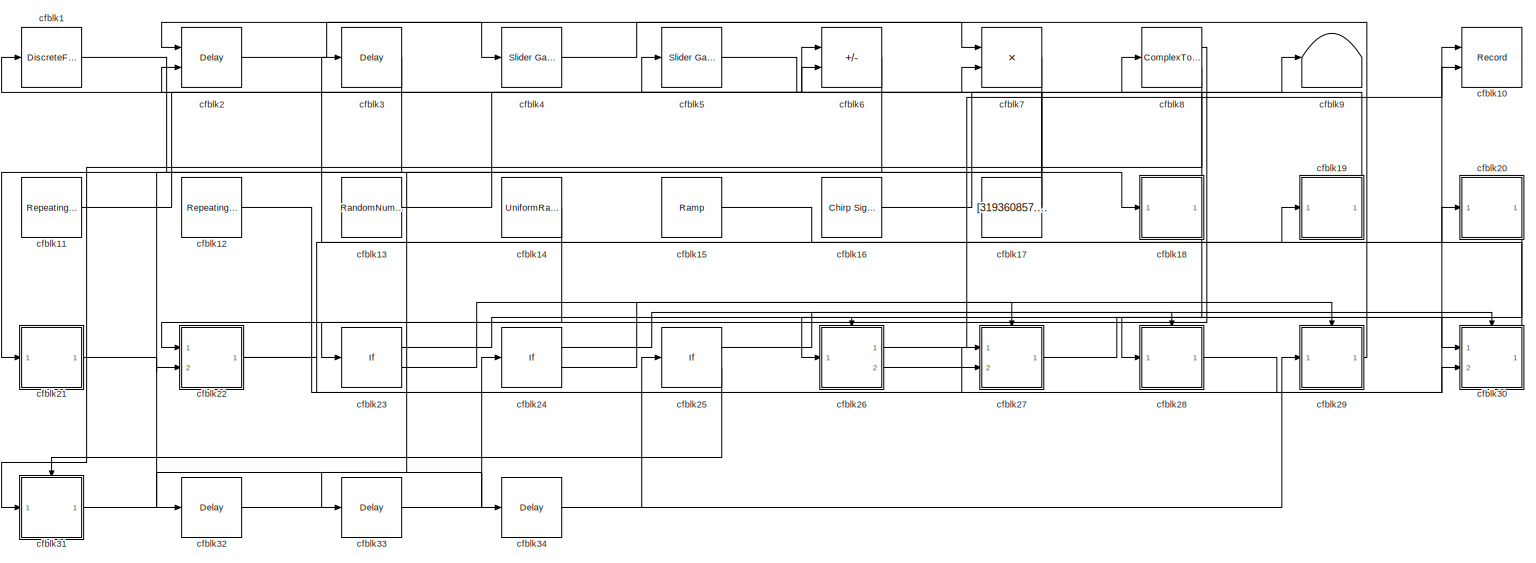
[diagram: root canvas - part 1/1, most of the canvas]
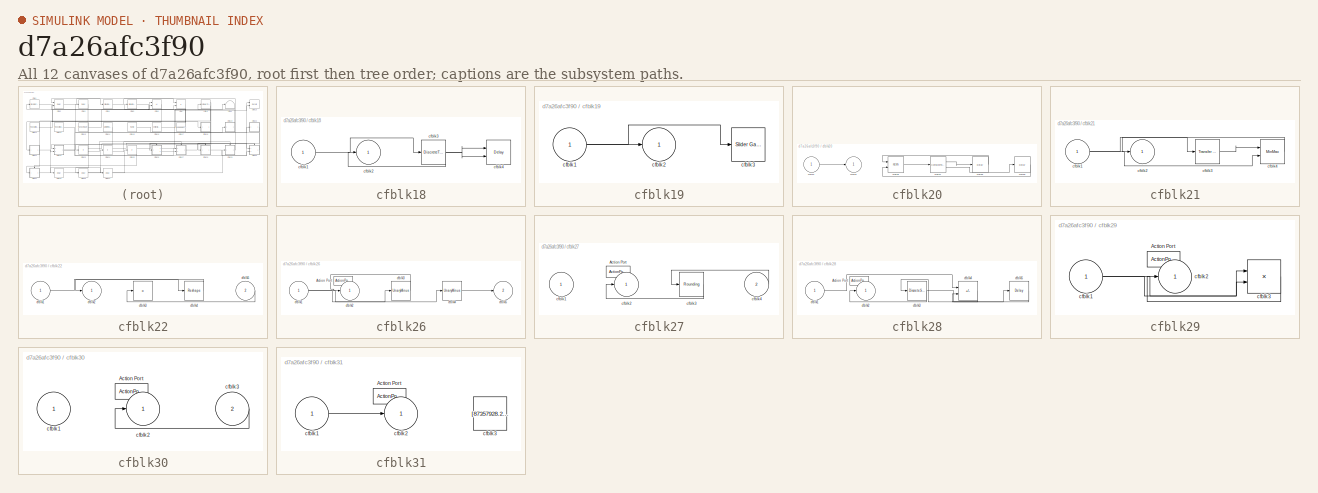
[diagram: thumbnail index - all 12 canvases of the model, root first then tree order]
MODEL slx_d7a26afc3f90
KIND model
CONFIG AbsTol = auto
CONFIG EnableMultiTasking = off
CONFIG FixedStep = auto
CONFIG MaxStep = auto
CONFIG MinStep = auto
CONFIG RelTol = 1e-3
CONFIG SampleTimeConstraint = Unconstrained
CONFIG SolverName = VariableStepAuto
CONFIG StartTime = 0.0
CONFIG StopTime = 10.0
BLOCK [DiscreteFilter] cfblk1
  InputPortMap = u0
  Ports = [1, 1]
  SampleTime = 1
BLOCK [Record] cfblk10
  CompatibilityTag = XY
  FileSettingsInternal = {"entries":[{"content":{"excelSettings":{"content":{},"type":"Streamout.ExcelSettings"}},"type":"Streamout.FileSettingStorage","uuid":"e7662b0d-9788-4241-b231-2d1bc495edf1"}],"packageUris":["http://schema.mathworks.com/mf0/streamout_blocks/R2020a"],"version":"1.0"}
  Layout = [1 1]
  Ports = [2]
  SignalsInternal = {"entries":[{"content":{"signals":[{"content":{"blockPath":["sampleModel112/cfblk10"],"channel":[],"dimensions":[1],"domain":"sampleModel112/cfblk10","lineColor":"#a2142f","plots":[1],"port":1,"sid":[""],"signalID":3893,"signalName":"cfblk12"},"type":"RecordBlkView.Signal","uuid":"768b1969-7b99-49bf-8f29-881fa0714196"},{"content":{"blockPath":["sampleModel112/cfblk10"],"channel":[],"dimensions":[1...<+385ch>
  VisualizationBindings = {"xyplotplugin":{"info":[{"series":[{"bindingParametersList":[{"parameter":"X-Axis","signalID":3893,"signalName":"cfblk12"},{"parameter":"Y-Axis","signalID":3897,"signalName":"cfblk26:1"}],"seriesID":16983}],"subplotID":1}]}}
BLOCK [Reference] cfblk11  REF=simulink/Sources/Repeating
Sequence
  Ports = [0, 1]
  SourceBlock = simulink/Sources/Repeating\nSequence
  SourceProductBaseCode = SL
  SourceType = Repeating table
BLOCK [Reference] cfblk12  REF=simulink/Sources/Repeating
Sequence
  Ports = [0, 1]
  SourceBlock = simulink/Sources/Repeating\nSequence
  SourceProductBaseCode = SL
  SourceType = Repeating table
BLOCK [RandomNumber] cfblk13
  Mean = [-82983.500332]
  SampleTime = 0.1
  Seed = [308454848.000000]
  Variance = [79082.987878]
BLOCK [UniformRandomNumber] cfblk14
  Maximum = [7952096108.975738]
  Minimum = [-3368545703.776334]
  SampleTime = 0.1
  Seed = [61725340.000000]
BLOCK [Reference] cfblk15  REF=simulink/Sources/Ramp
  Ports = [0, 1]
  SourceBlock = simulink/Sources/Ramp
  SourceProductBaseCode = SL
  SourceType = Ramp
BLOCK [Reference] cfblk16  REF=simulink/Sources/Chirp Signal
  Ports = [0, 1]
  SourceBlock = simulink/Sources/Chirp Signal
  SourceProductBaseCode = SL
  SourceType = chirp
BLOCK [Constant] cfblk17
  SampleTime = 1
  Value = [319360857.779685]
BLOCK [SubSystem] cfblk18
  Ports = [1, 1]
  RequestExecContextInheritance = off
BLOCK [Inport] cfblk18/cfblk1
BLOCK [Outport] cfblk18/cfblk2
BLOCK [DiscreteTransferFcn] cfblk18/cfblk3
  InputPortMap = u0
  Ports = [1, 1]
  SampleTime = 1
BLOCK [Delay] cfblk18/cfblk4
  DelayLengthSource = Input port
  InputPortMap = u0,p1
  Ports = [2, 1]
  SampleTime = 1
BLOCK [SubSystem] cfblk19
  Ports = [1, 1]
  RequestExecContextInheritance = off
BLOCK [Inport] cfblk19/cfblk1
BLOCK [Outport] cfblk19/cfblk2
BLOCK [Reference] cfblk19/cfblk3  REF=simulink/Math
Operations/Slider
Gain
  Ports = [1, 1]
  SourceBlock = simulink/Math\nOperations/Slider\nGain
  SourceProductBaseCode = SL
  SourceType = Slider Gain
BLOCK [Delay] cfblk2
  InputPortMap = u0,e6
  Ports = [2, 1]
  SampleTime = 1
  ShowEnablePort = on
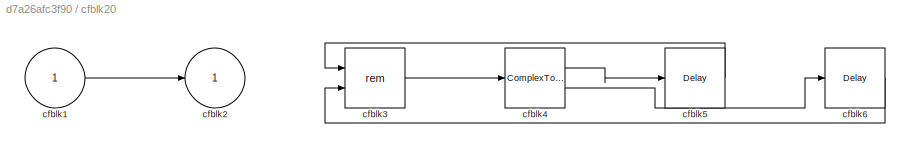
BLOCK [SubSystem] cfblk20
  Ports = [1, 1]
  RequestExecContextInheritance = off
BLOCK [Inport] cfblk20/cfblk1
BLOCK [Outport] cfblk20/cfblk2
BLOCK [Math] cfblk20/cfblk3
  Operator = rem
  Ports = [2, 1]
BLOCK [ComplexToMagnitudeAngle] cfblk20/cfblk4
  Ports = [1, 2]
BLOCK [Delay] cfblk20/cfblk5
  InputPortMap = u0
  Ports = [1, 1]
  SampleTime = 1
BLOCK [Delay] cfblk20/cfblk6
  InputPortMap = u0
  Ports = [1, 1]
  SampleTime = 1
BLOCK [SubSystem] cfblk21
  Ports = [1, 1]
  RequestExecContextInheritance = off
BLOCK [Inport] cfblk21/cfblk1
BLOCK [Outport] cfblk21/cfblk2
BLOCK [Reference] cfblk21/cfblk3  REF=simulink/Discrete/Transfer Fcn
First Order
  Ports = [1, 1]
  SourceBlock = simulink/Discrete/Transfer Fcn\nFirst Order
  SourceProductBaseCode = SL
  SourceType = First Order Transfer Fcn
BLOCK [MinMax] cfblk21/cfblk4
  Function = max
  Inputs = 2
  Ports = [2, 1]
BLOCK [SubSystem] cfblk22
  Ports = [2, 1]
  RequestExecContextInheritance = off
BLOCK [Inport] cfblk22/cfblk1
BLOCK [Outport] cfblk22/cfblk2
BLOCK [Product] cfblk22/cfblk3
  Inputs = *
  Ports = [1, 1]
BLOCK [Reshape] cfblk22/cfblk4
  Ports = [1, 1]
BLOCK [Inport] cfblk22/cfblk5
  Port = 2
BLOCK [If] cfblk23
  IfExpression = u1 >= 0
  Ports = [1, 2]
  SampleTime = 1
BLOCK [If] cfblk24
  IfExpression = u1 >= 0
  Ports = [1, 2]
  SampleTime = 1
BLOCK [If] cfblk25
  IfExpression = u1 >= 0
  Ports = [1, 2]
  SampleTime = 1
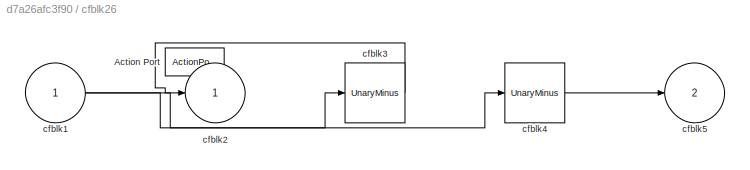
BLOCK [SubSystem] cfblk26
  Ports = [1, 2, 0, 0, 0, 0, 0, 1]
  RequestExecContextInheritance = off
  TreatAsAtomicUnit = on
BLOCK [ActionPort] cfblk26/Action Port
  ActionPortLabel = if(u1 >= 0)
BLOCK [Inport] cfblk26/cfblk1
BLOCK [Outport] cfblk26/cfblk2
BLOCK [UnaryMinus] cfblk26/cfblk3
BLOCK [UnaryMinus] cfblk26/cfblk4
BLOCK [Outport] cfblk26/cfblk5
  Port = 2
BLOCK [SubSystem] cfblk27
  Ports = [2, 1, 0, 0, 0, 0, 0, 1]
  RequestExecContextInheritance = off
  TreatAsAtomicUnit = on
BLOCK [ActionPort] cfblk27/Action Port
  ActionPortLabel = else
BLOCK [Inport] cfblk27/cfblk1
BLOCK [Outport] cfblk27/cfblk2
BLOCK [Rounding] cfblk27/cfblk3
BLOCK [Inport] cfblk27/cfblk4
  Port = 2
BLOCK [SubSystem] cfblk28
  Ports = [1, 1, 0, 0, 0, 0, 0, 1]
  RequestExecContextInheritance = off
  TreatAsAtomicUnit = on
BLOCK [ActionPort] cfblk28/Action Port
  ActionPortLabel = if(u1 >= 0)
BLOCK [Inport] cfblk28/cfblk1
BLOCK [Outport] cfblk28/cfblk2
BLOCK [DiscreteStateSpace] cfblk28/cfblk3
  SampleTime = -1
BLOCK [Sum] cfblk28/cfblk4
  IconShape = rectangular
  Inputs = -+
  Ports = [2, 1]
BLOCK [Delay] cfblk28/cfblk5
  InputPortMap = u0
  Ports = [1, 1]
BLOCK [SubSystem] cfblk29
  Ports = [1, 1, 0, 0, 0, 0, 0, 1]
  RequestExecContextInheritance = off
  TreatAsAtomicUnit = on
BLOCK [ActionPort] cfblk29/Action Port
  ActionPortLabel = else
BLOCK [Inport] cfblk29/cfblk1
BLOCK [Outport] cfblk29/cfblk2
BLOCK [Product] cfblk29/cfblk3
  Ports = [2, 1]
BLOCK [Delay] cfblk3
  InputPortMap = u0
  Ports = [1, 1]
  SampleTime = 1
BLOCK [SubSystem] cfblk30
  Ports = [2, 1, 0, 0, 0, 0, 0, 1]
  RequestExecContextInheritance = off
  TreatAsAtomicUnit = on
BLOCK [ActionPort] cfblk30/Action Port
  ActionPortLabel = if(u1 >= 0)
BLOCK [Inport] cfblk30/cfblk1
BLOCK [Outport] cfblk30/cfblk2
BLOCK [Inport] cfblk30/cfblk3
  Port = 2
BLOCK [SubSystem] cfblk31
  Ports = [1, 1, 0, 0, 0, 0, 0, 1]
  RequestExecContextInheritance = off
  TreatAsAtomicUnit = on
BLOCK [ActionPort] cfblk31/Action Port
  ActionPortLabel = else
BLOCK [Inport] cfblk31/cfblk1
BLOCK [Outport] cfblk31/cfblk2
BLOCK [Constant] cfblk31/cfblk3
  SampleTime = 1
  Value = [87357928.253987]
BLOCK [Delay] cfblk32
  InputPortMap = u0
  Ports = [1, 1]
  SampleTime = 1
BLOCK [Delay] cfblk33
  InputPortMap = u0
  Ports = [1, 1]
  SampleTime = 1
BLOCK [Delay] cfblk34
  InputPortMap = u0
  Ports = [1, 1]
  SampleTime = 1
BLOCK [Reference] cfblk4  REF=simulink/Math
Operations/Slider
Gain
  Ports = [1, 1]
  SourceBlock = simulink/Math\nOperations/Slider\nGain
  SourceProductBaseCode = SL
  SourceType = Slider Gain
BLOCK [Reference] cfblk5  REF=simulink/Math
Operations/Slider
Gain
  Ports = [1, 1]
  SourceBlock = simulink/Math\nOperations/Slider\nGain
  SourceProductBaseCode = SL
  SourceType = Slider Gain
BLOCK [Sum] cfblk6
  IconShape = rectangular
  Inputs = +-
  Ports = [2, 1]
BLOCK [Product] cfblk7
  Ports = [2, 1]
BLOCK [ComplexToRealImag] cfblk8
  Ports = [1, 2]
BLOCK [Terminator] cfblk9
LINE cfblk11:1 -> cfblk6:1
LINE cfblk12:1 -> cfblk10:1
LINE cfblk13:1 -> cfblk6:2
LINE cfblk14:1 -> cfblk23:1
LINE cfblk15:1 -> cfblk19:1
LINE cfblk16:1 -> cfblk9:1
NET cfblk17:1 -> cfblk1:1, cfblk2:2
LINE cfblk18/cfblk1:1 -> cfblk18/cfblk3:1
NET cfblk18/cfblk3:1 -> cfblk18/cfblk2:1, cfblk18/cfblk4:1, cfblk18/cfblk4:2
NET cfblk18:1 -> cfblk28:1, cfblk8:1
NET cfblk19/cfblk1:1 -> cfblk19/cfblk2:1, cfblk19/cfblk3:1
LINE cfblk19:1 -> cfblk5:1
LINE cfblk1:1 -> cfblk18:1
LINE cfblk20/cfblk1:1 -> cfblk20/cfblk2:1
LINE cfblk20/cfblk3:1 -> cfblk20/cfblk4:1
LINE cfblk20/cfblk4:1 -> cfblk20/cfblk5:1
LINE cfblk20/cfblk4:2 -> cfblk20/cfblk6:1
LINE cfblk20/cfblk5:1 -> cfblk20/cfblk3:1
LINE cfblk20/cfblk6:1 -> cfblk20/cfblk3:2
LINE cfblk20:1 -> cfblk26:1
NET cfblk21/cfblk1:1 -> cfblk21/cfblk3:1, cfblk21/cfblk4:2
LINE cfblk21/cfblk3:1 -> cfblk21/cfblk4:1
LINE cfblk21/cfblk4:1 -> cfblk21/cfblk2:1
LINE cfblk21:1 -> cfblk32:1
LINE cfblk22/cfblk1:1 -> cfblk22/cfblk4:1
LINE cfblk22/cfblk4:1 -> cfblk22/cfblk2:1
LINE cfblk22/cfblk5:1 -> cfblk22/cfblk3:1
NET cfblk22:1 -> cfblk20:1, cfblk27:2
LINE cfblk23:1 -> cfblk26:ifaction
LINE cfblk23:2 -> cfblk27:ifaction
LINE cfblk24:1 -> cfblk28:ifaction
LINE cfblk24:2 -> cfblk29:ifaction
LINE cfblk25:1 -> cfblk30:ifaction
LINE cfblk25:2 -> cfblk31:ifaction
NET cfblk26/cfblk1:1 -> cfblk26/cfblk3:1, cfblk26/cfblk4:1
LINE cfblk26/cfblk3:1 -> cfblk26/cfblk2:1
LINE cfblk26/cfblk4:1 -> cfblk26/cfblk5:1
LINE cfblk26:1 -> cfblk10:2
LINE cfblk26:2 -> cfblk27:1
LINE cfblk27/cfblk3:1 -> cfblk27/cfblk2:1
LINE cfblk27/cfblk4:1 -> cfblk27/cfblk3:1
LINE cfblk27:1 -> cfblk30:1
LINE cfblk28/cfblk1:1 -> cfblk28/cfblk4:1
NET cfblk28/cfblk3:1 -> cfblk28/cfblk2:1, cfblk28/cfblk5:1
LINE cfblk28/cfblk4:1 -> cfblk28/cfblk3:1
LINE cfblk28/cfblk5:1 -> cfblk28/cfblk4:2
LINE cfblk28:1 -> cfblk30:2
NET cfblk29/cfblk1:1 -> cfblk29/cfblk3:1, cfblk29/cfblk3:2
LINE cfblk29/cfblk3:1 -> cfblk29/cfblk2:1
LINE cfblk29:1 -> cfblk2:1
LINE cfblk2:1 -> cfblk4:1
LINE cfblk30/cfblk3:1 -> cfblk30/cfblk2:1
LINE cfblk30:1 -> cfblk3:1
LINE cfblk31/cfblk1:1 -> cfblk31/cfblk2:1
LINE cfblk31:1 -> cfblk34:1
LINE cfblk32:1 -> cfblk24:1
LINE cfblk33:1 -> cfblk25:1
LINE cfblk34:1 -> cfblk29:1
LINE cfblk3:1 -> cfblk21:1
LINE cfblk4:1 -> cfblk7:1
LINE cfblk5:1 -> cfblk7:2
LINE cfblk6:1 -> cfblk22:2
LINE cfblk7:1 -> cfblk33:1
LINE cfblk8:1 -> cfblk22:1
LINE cfblk8:2 -> cfblk31:1
note: NET lines group one-source signal fan-out (src -> all destinations, sorted); 1:1 wires keep LINE
